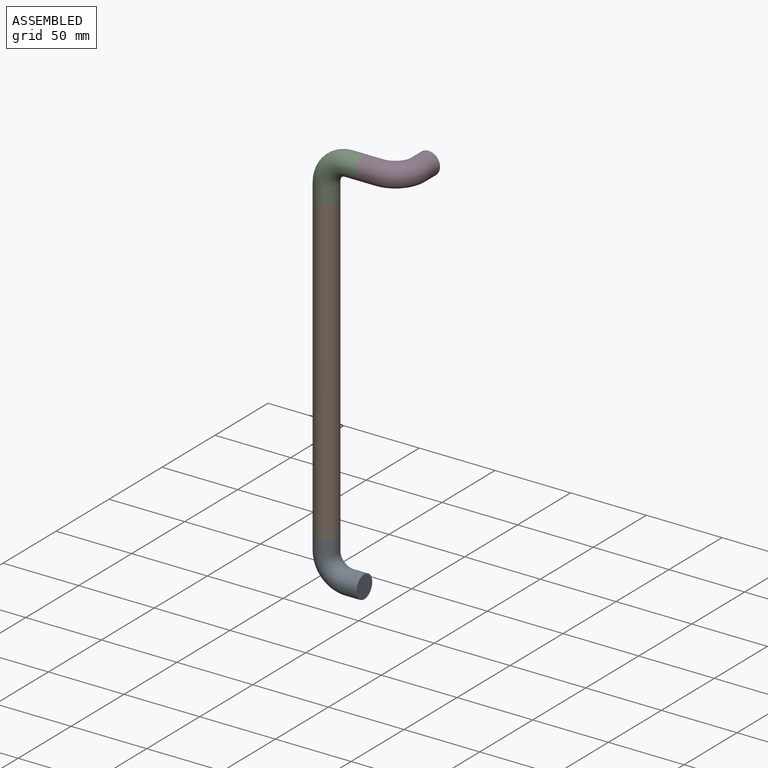
[diagram: assembled view]
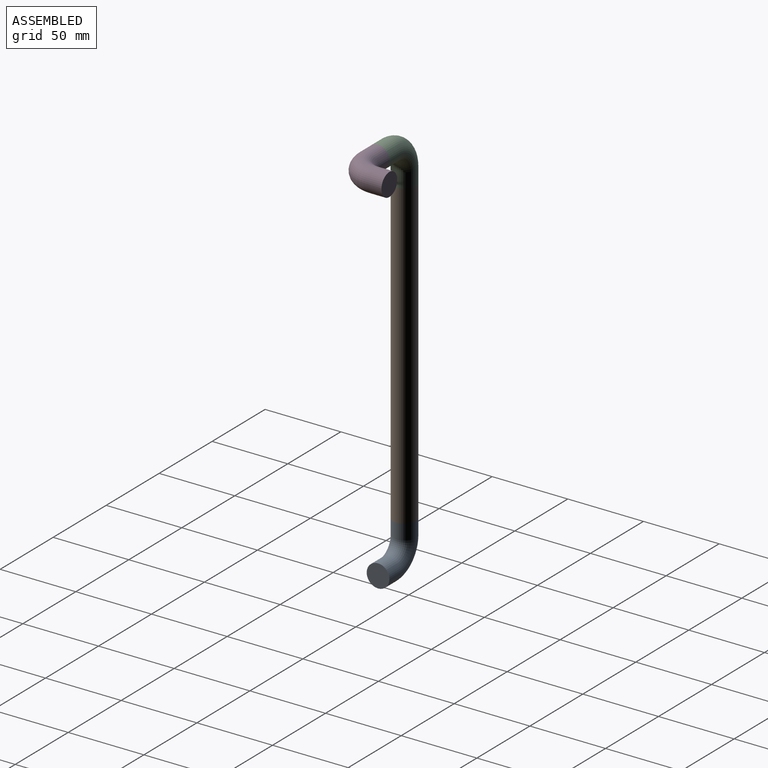
[diagram: assembled view, second angle]
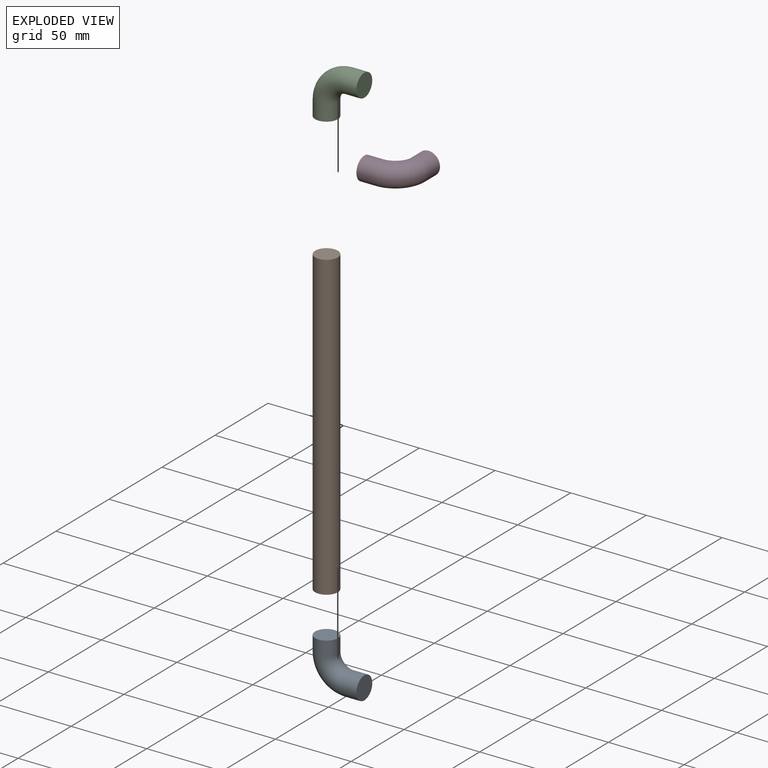
[diagram: exploded view]
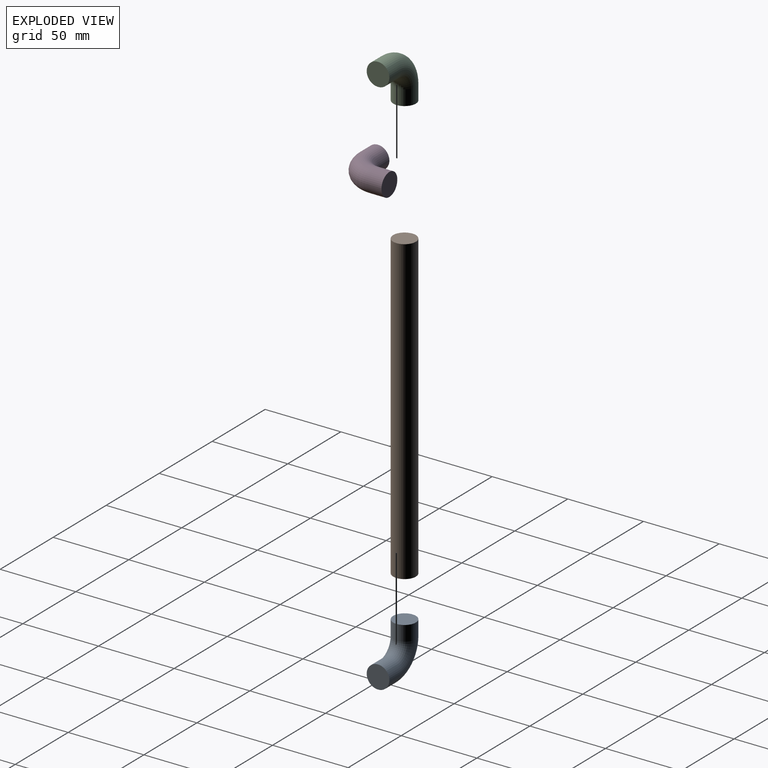
[diagram: exploded view, second angle]
ASSEMBLY  parts=4 mates=3
PART A: 5 faces, bbox 34.4x34.4x15 mm
  f0: plane 15x15mm, normal (0,-1,0), area 176.7mm2, adj f2
  f1: plane 15x15mm, normal (1,0,0), area 176.7mm2, adj f4
  f2: cylinder r=7.5mm len=15mm, axis (0,1,0), area 471.2mm2, adj f0,f3
  f3: torus R=15mm, axis (0,0,-1), area 1110.3mm2, adj f2,f4
  f4: cylinder r=7.5mm len=15mm, axis (1,0,0), area 471.2mm2, adj f1,f3
PART B: 3 faces, bbox 15x200x15 mm
  f0: cylinder r=7.5mm len=200mm, axis (0,1,0), area 9424.8mm2, adj f1,f2
  f1: plane 15x15mm, normal (0,-1,0), area 176.7mm2, adj f0
  f2: plane 15x15mm, normal (0,1,0), area 176.7mm2, adj f0
PART C: same geometry as A
PART D: same geometry as A
PLACE A rot(axis=(-1,0,0),90deg) t=(14891.08,-1439.02,-1550)mm
PLACE B rot(axis=(1,0,0),90deg) t=(14827.51,-1402.43,-1350)mm
PLACE C rot(axis=(1,0,0),90deg) t=(14891.08,-1439.02,-1350)mm
PLACE D rot(axis=(0.71,0.71,0),180deg) t=(14916.08,-1439.02,-1325)mm
MATE fastened C.f4 <-> D.f2  axis (1,0,0) through (14916.08,-1439.02,-1325)mm
MATE fastened A.f2 <-> B.f0  axis (0,0,1) through (14891.08,-1439.02,-1550)mm
MATE fastened B.f0 <-> C.f2  axis (0,0,1) through (14891.08,-1439.02,-1350)mm
